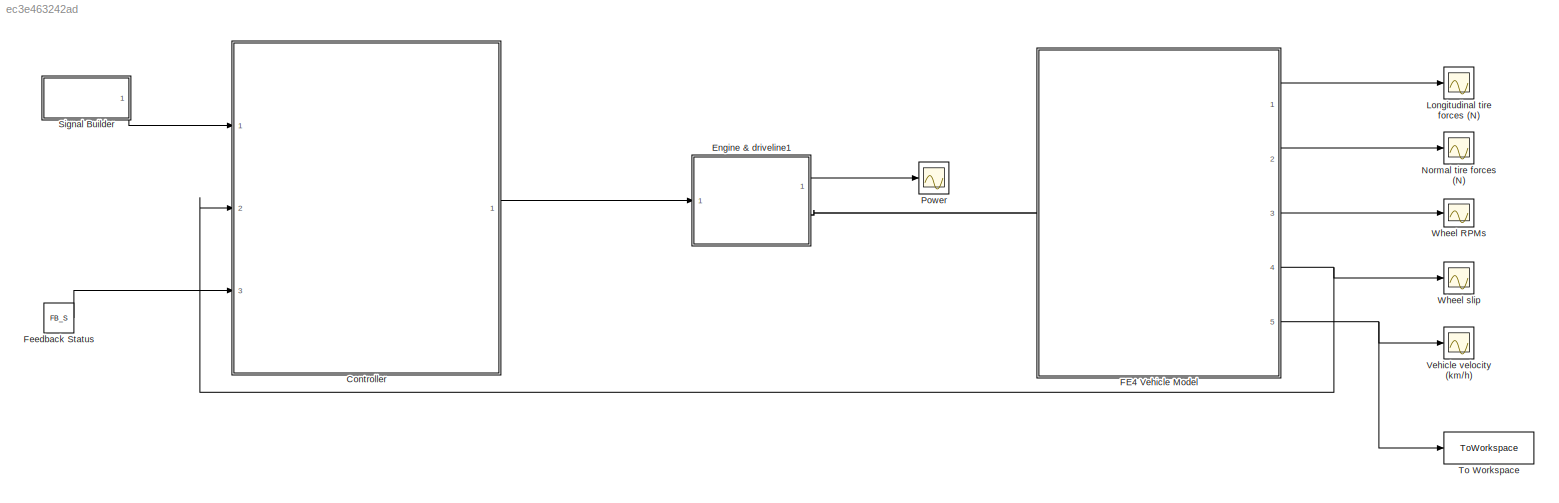
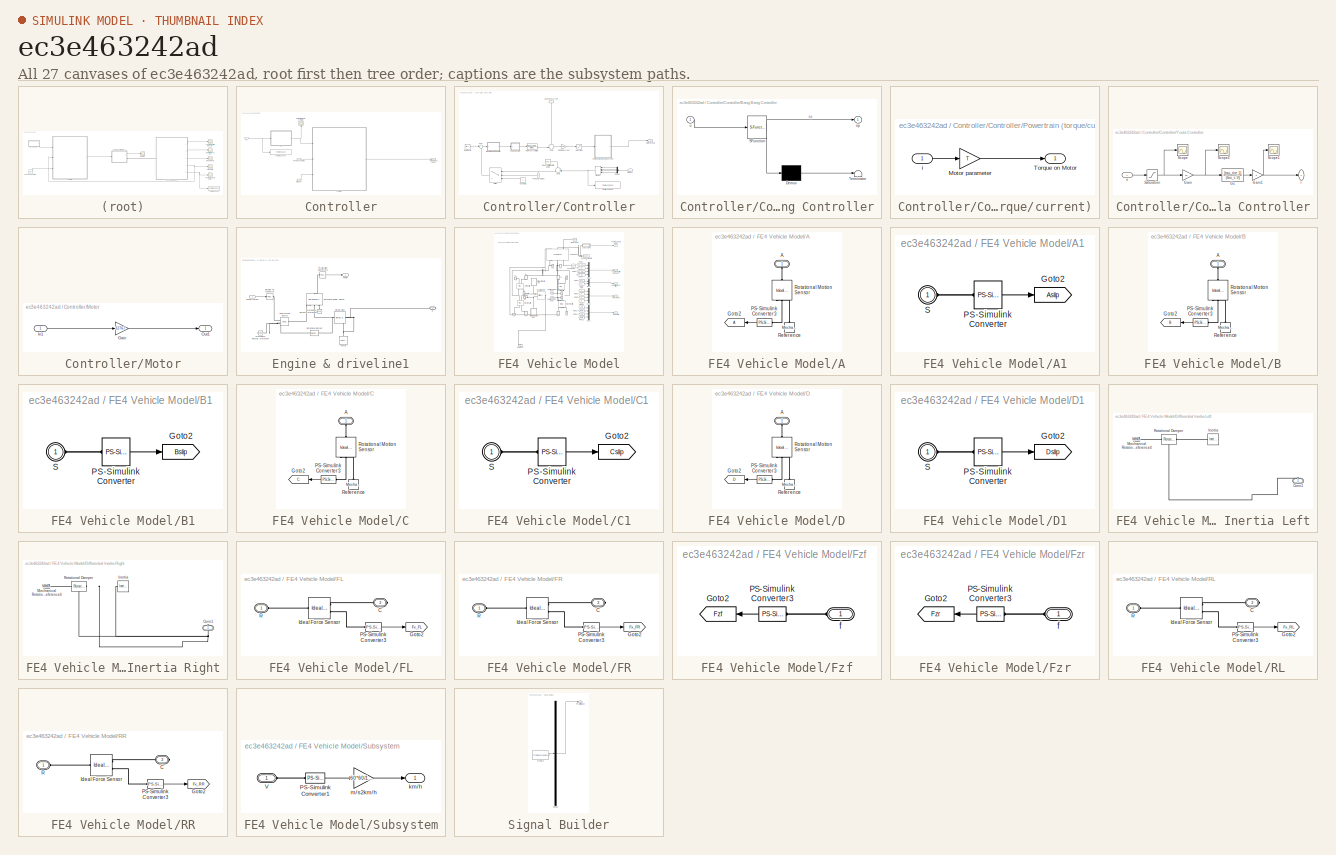
[diagram: thumbnail index - all 27 canvases of the model, root first then tree order]
MODEL slx_ec3e463242ad
KIND model
CONFIG AbsTol = auto
CONFIG EnableMultiTasking = on
CONFIG FixedStep = auto
CONFIG MaxStep = auto
CONFIG MinStep = auto
CONFIG PreLoadFcn = load CarSim_FE4.mat\nload Vehicle_information_test_0118_2017.mat\n\ninertiaDriveShaft = 12;\nratioDiff = 2;\nradiusWheel = 16*2.54/100;\nmassVehicle = 1500;\ninertiaLateral = 25*(radiusWheel)^2;\nbeta = 15;\nengineRPM0 = 800;\ntireStiffness = 200000;\ntireDamping = 1000;
CONFIG RelTol = 1e-3
CONFIG SampleTimeConstraint = Unconstrained
CONFIG Solver = VariableStepAuto
CONFIG SolverName = VariableStepAuto
CONFIG StartTime = 0.0
CONFIG StopTime = 10
BLOCK [SubSystem] Controller
  Ports = [3, 1]
  RequestExecContextInheritance = off
  Variant = off
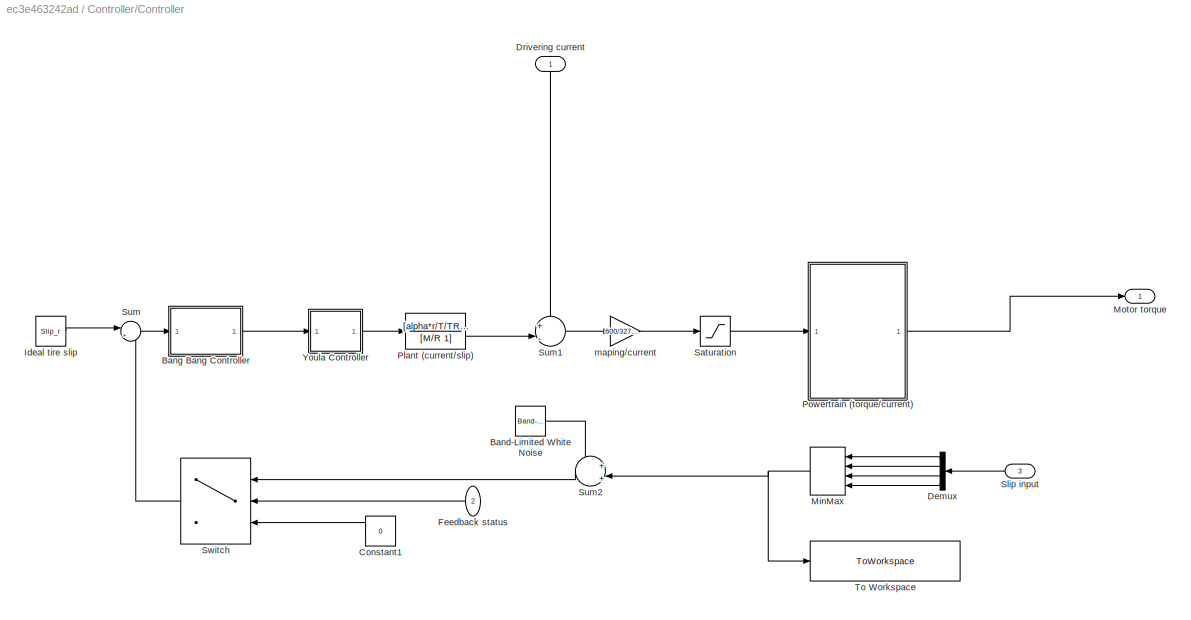
BLOCK [SubSystem] Controller/Controller
  Ports = [3, 1]
  RequestExecContextInheritance = off
  ShowPortLabels = none
  Variant = off
BLOCK [Reference] Controller/Controller/Band-Limited White Noise  REF=simulink/Sources/Band-Limited
White Noise
  Ports = [0, 1]
  SourceBlock = simulink/Sources/Band-Limited\nWhite Noise
  SourceProductBaseCode = SL
  SourceProductName = Simulink
  SourceType = Band-Limited White Noise.
BLOCK [SubSystem] Controller/Controller/Bang Bang Controller
  ErrorFcn = Stateflow.Translate.translate
  PermitHierarchicalResolution = ExplicitOnly
  Ports = [1, 1]
  RequestExecContextInheritance = off
  SFBlockType = MATLAB Function
  TreatAsAtomicUnit = on
  Variant = off
BLOCK [Demux] Controller/Controller/Bang Bang Controller/ Demux 
  Outputs = 1
  Ports = [1, 1]
BLOCK [S-Function] Controller/Controller/Bang Bang Controller/ SFunction 
  EnableBusSupport = on
  FunctionName = sf_sfun
  PortCounts = [1 2]
  Ports = [1, 2]
  SFcnIsStateOwnerBlock = off
  SFunctionDeploymentMode = off
  Tag = Stateflow S-Function Traction_Control_Testing_5_2_2017 2
BLOCK [Terminator] Controller/Controller/Bang Bang Controller/ Terminator 
BLOCK [Outport] Controller/Controller/Bang Bang Controller/sp
  IconDisplay = Port number
BLOCK [Inport] Controller/Controller/Bang Bang Controller/u
  IconDisplay = Port number
BLOCK [Constant] Controller/Controller/Constant1
  Value = 0
BLOCK [Demux] Controller/Controller/Demux
  DisplayOption = bar
  Ports = [1, 4]
BLOCK [Inport] Controller/Controller/Drivering current
  IconDisplay = Port number
BLOCK [Inport] Controller/Controller/Feedback status
  IconDisplay = Port number
  Port = 2
BLOCK [Constant] Controller/Controller/Ideal tire slip
  Value = Slip_r
BLOCK [MinMax] Controller/Controller/MinMax
  Function = max
  InputSameDT = off
  Inputs = 4
  Ports = [4, 1]
  SaturateOnIntegerOverflow = off
BLOCK [Outport] Controller/Controller/Motor torque
  IconDisplay = Port number
BLOCK [TransferFcn] Controller/Controller/Plant (current//slip)
  Denominator = [M/R 1]
  Numerator = [alpha*r/T/TR*32767/600]
BLOCK [SubSystem] Controller/Controller/Powertrain (torque//current)
  Ports = [1, 1]
  RequestExecContextInheritance = off
  Variant = off
BLOCK [Gain] Controller/Controller/Powertrain (torque//current)/Motor parameter
  Gain = T
  OutDataTypeStr = Inherit: Inherit via internal rule
  ParamDataTypeStr = Inherit: Inherit via internal rule
  SaturateOnIntegerOverflow = off
BLOCK [Outport] Controller/Controller/Powertrain (torque//current)/Torque on Motor
  IconDisplay = Port number
BLOCK [Inport] Controller/Controller/Powertrain (torque//current)/i
  IconDisplay = Port number
BLOCK [Saturate] Controller/Controller/Saturation
  InputPortMap = u0
  LowerLimit = 0
  Ports = [1, 1]
  UpperLimit = 600
BLOCK [Inport] Controller/Controller/Slip input
  IconDisplay = Port number
  Port = 3
BLOCK [Sum] Controller/Controller/Sum
  IconShape = round
  InputSameDT = off
  Inputs = |+-
  OutDataTypeStr = Inherit: Inherit via internal rule
  Ports = [2, 1]
  SaturateOnIntegerOverflow = off
BLOCK [Sum] Controller/Controller/Sum1
  IconShape = round
  InputSameDT = off
  Inputs = +|-||
  OutDataTypeStr = Inherit: Inherit via internal rule
  Ports = [2, 1]
  SaturateOnIntegerOverflow = off
BLOCK [Sum] Controller/Controller/Sum2
  IconShape = round
  InputSameDT = off
  Inputs = +|+||
  OutDataTypeStr = Inherit: Inherit via internal rule
  Ports = [2, 1]
  SaturateOnIntegerOverflow = off
BLOCK [Switch] Controller/Controller/Switch
  Criteria = u2 > Threshold
  InputSameDT = off
  SaturateOnIntegerOverflow = off
BLOCK [ToWorkspace] Controller/Controller/To Workspace
  FixptAsFi = on
  MaxDataPoints = inf
  Ports = [1]
  SampleTime = -1
  Save2DSignal = 3-D array (concatenate along third dimension)
  SaveFormat = Timeseries
  VariableName = real_time_slip
BLOCK [SubSystem] Controller/Controller/Youla Controller
  Ports = [1, 1]
  RequestExecContextInheritance = off
  Variant = off
BLOCK [Gain] Controller/Controller/Youla Controller/Gain
  Gain = kc
  OutDataTypeStr = Inherit: Inherit via internal rule
  ParamDataTypeStr = Inherit: Inherit via internal rule
  SaturateOnIntegerOverflow = off
BLOCK [Gain] Controller/Controller/Youla Controller/Gain1
  Gain = -1
  OutDataTypeStr = Inherit: Inherit via internal rule
  ParamDataTypeStr = Inherit: Inherit via internal rule
  SaturateOnIntegerOverflow = off
BLOCK [TransferFcn] Controller/Controller/Youla Controller/Gc
  Denominator = [tau_c 0]
  Numerator = [tau_tire 1]
BLOCK [Saturate] Controller/Controller/Youla Controller/Saturation
  InputPortMap = u0
  LowerLimit = -1
  Ports = [1, 1]
  UpperLimit = 0
BLOCK [Scope] Controller/Controller/Youla Controller/Scope
  NumInputPorts = 1
  Ports = [1]
  ScopeSpecificationString = Simulink.scopes.TimeScopeBlockCfg('CurrentConfiguration', extmgr.ConfigurationSet(extmgr.Configuration('Core','General UI',true),extmgr.Configuration('Core','Source UI',true),extmgr.Configuration('Sources','WiredSimulink',true,'DataLoggingVariableName','ScopeData1'),extmgr.Configuration('Visuals','Time Domain',true,'SerializedDisplays',{struct('MinYLimReal','-0.12332','MaxYLimReal','0.0137','YLabe...<+1422ch>
BLOCK [Scope] Controller/Controller/Youla Controller/Scope1
  NumInputPorts = 1
  Ports = [1]
  ScopeSpecificationString = Simulink.scopes.TimeScopeBlockCfg('CurrentConfiguration', extmgr.ConfigurationSet(extmgr.Configuration('Core','General UI',true),extmgr.Configuration('Core','Source UI',true),extmgr.Configuration('Sources','WiredSimulink',true,'DataLoggingVariableName','ScopeData2'),extmgr.Configuration('Visuals','Time Domain',true,'SerializedDisplays',{struct('MinYLimReal','-0.0744','MaxYLimReal','0.66956','YLabe...<+1417ch>
BLOCK [Scope] Controller/Controller/Youla Controller/Scope2
  NumInputPorts = 1
  Ports = [1]
  ScopeSpecificationString = Simulink.scopes.TimeScopeBlockCfg('CurrentConfiguration', extmgr.ConfigurationSet(extmgr.Configuration('Core','General UI',true),extmgr.Configuration('Core','Source UI',true),extmgr.Configuration('Sources','WiredSimulink',true,'DataLoggingVariableName','ScopeData3'),extmgr.Configuration('Visuals','Time Domain',true,'SerializedDisplays',{struct('MinYLimReal','-31.81745','MaxYLimReal','3.53527','YLa...<+1422ch>
BLOCK [Inport] Controller/Controller/Youla Controller/e
  IconDisplay = Port number
BLOCK [Outport] Controller/Controller/Youla Controller/r
  IconDisplay = Port number
BLOCK [Gain] Controller/Controller/maping//current
  Gain = 600/32767
  OutDataTypeStr = Inherit: Inherit via internal rule
  ParamDataTypeStr = Inherit: Inherit via internal rule
  SaturateOnIntegerOverflow = off
BLOCK [Scope] Controller/Current from Motor controller
  NumInputPorts = 1
  Ports = [1]
  ScopeSpecificationString = Simulink.scopes.TimeScopeBlockCfg('CurrentConfiguration', extmgr.ConfigurationSet(extmgr.Configuration('Core','General UI',true),extmgr.Configuration('Core','Source UI',true),extmgr.Configuration('Sources','WiredSimulink',true,'DataLoggingVariableName','ScopeData6'),extmgr.Configuration('Visuals','Time Domain',true,'SerializedDisplays',{struct('MinYLimReal','-75.00000','MaxYLimReal','675.00000','Y...<+1429ch>
BLOCK [Inport] Controller/Feedback status
  IconDisplay = Port number
  Port = 3
BLOCK [Inport] Controller/In1
  IconDisplay = Port number
BLOCK [SubSystem] Controller/Motor
  Ports = [1, 1]
  RequestExecContextInheritance = off
  ShowPortLabels = none
  Variant = off
BLOCK [Outport] Controller/Motor Torque output
  IconDisplay = Port number
BLOCK [Gain] Controller/Motor/Gain
  Gain = 32767
  OutDataTypeStr = Inherit: Inherit via internal rule
  ParamDataTypeStr = Inherit: Inherit via internal rule
  SaturateOnIntegerOverflow = off
BLOCK [Inport] Controller/Motor/In1
  IconDisplay = Port number
BLOCK [Outport] Controller/Motor/Out1
  IconDisplay = Port number
BLOCK [Inport] Controller/Slip input
  IconDisplay = Port number
  Port = 2
BLOCK [ToWorkspace] Controller/To Workspace1
  FixptAsFi = on
  MaxDataPoints = inf
  Ports = [1]
  SampleTime = -1
  Save2DSignal = 3-D array (concatenate along third dimension)
  SaveFormat = Timeseries
  VariableName = throttle_input
BLOCK [SubSystem] Engine & driveline1
  Ports = [1, 1, 0, 0, 0, 0, 1]
  RequestExecContextInheritance = off
  Variant = off
BLOCK [PMIOPort] Engine & driveline1/D
  Port = 1
  Side = Right
BLOCK [Inport] Engine & driveline1/Driving Torque
  IconDisplay = Port number
BLOCK [Reference] Engine & driveline1/Ideal Torque Source  REF=fl_lib/Mechanical/Mechanical Sources/Ideal Torque Source
  Ports = [0, 0, 0, 0, 0, 1, 2]
  SourceBlock = fl_lib/Mechanical/Mechanical Sources/Ideal Torque Source
  SourceProductBaseCode = SS
  SourceProductName = Simscape
  SourceType = Ideal Torque Source
BLOCK [Reference] Engine & driveline1/Inertia  REF=fl_lib/Mechanical/Rotational Elements/Inertia
  Ports = [0, 0, 0, 0, 0, 1]
  SourceBlock = fl_lib/Mechanical/Rotational Elements/Inertia
  SourceProductBaseCode = SS
  SourceProductName = Simscape
  SourceType = Inertia
BLOCK [Reference] Engine & driveline1/Mechanical Rotational Reference3  REF=fl_lib/Mechanical/Rotational Elements/Mechanical
Rotational Reference
  Ports = [0, 0, 0, 0, 0, 1]
  SourceBlock = fl_lib/Mechanical/Rotational Elements/Mechanical\nRotational Reference
  SourceProductBaseCode = SS
  SourceProductName = Simscape
  SourceType = Mechanical\nRotational Reference
BLOCK [Reference] Engine & driveline1/Mechanical Rotational Reference4  REF=fl_lib/Mechanical/Rotational Elements/Mechanical
Rotational Reference
  Ports = [0, 0, 0, 0, 0, 1]
  SourceBlock = fl_lib/Mechanical/Rotational Elements/Mechanical\nRotational Reference
  SourceProductBaseCode = SS
  SourceProductName = Simscape
  SourceType = Mechanical\nRotational Reference
BLOCK [Reference] Engine & driveline1/PS-Simulink Converter5  REF=nesl_utility/PS-Simulink
Converter
  Ports = [0, 1, 0, 0, 0, 1]
  SourceBlock = nesl_utility/PS-Simulink\nConverter
  SourceProductBaseCode = SS
  SourceProductName = Simscape
  SourceType = PS-Simulink\nConverter
BLOCK [Outport] Engine & driveline1/Power
  IconDisplay = Port number
BLOCK [Reference] Engine & driveline1/Rotational Damper  REF=fl_lib/Mechanical/Rotational Elements/Rotational Damper
  Ports = [0, 0, 0, 0, 0, 1, 1]
  SourceBlock = fl_lib/Mechanical/Rotational Elements/Rotational Damper
  SourceProductBaseCode = SS
  SourceProductName = Simscape
  SourceType = Rotational Damper
BLOCK [Reference] Engine & driveline1/Rotational Power Sensor  REF=sdl_lib/Sensors/Rotational Power
Sensor
  Ports = [0, 0, 0, 0, 0, 3, 1]
  SourceBlock = sdl_lib/Sensors/Rotational Power\nSensor
  SourceProductBaseCode = LD
  SourceProductName = Simscape Driveline
  SourceType = Rotational Power\nSensor
BLOCK [Reference] Engine & driveline1/Simple Gear  REF=sdl_lib/Gears/Simple Gear
  Ports = [0, 0, 0, 0, 0, 1, 1]
  SourceBlock = sdl_lib/Gears/Simple Gear
  SourceProductBaseCode = LD
  SourceProductName = Simscape Driveline
  SourceType = Simple Gear
BLOCK [Reference] Engine & driveline1/Simulink-PS Converter  REF=nesl_utility/Simulink-PS
Converter
  Ports = [1, 0, 0, 0, 0, 0, 1]
  SourceBlock = nesl_utility/Simulink-PS\nConverter
  SourceProductBaseCode = SS
  SourceProductName = Simscape
  SourceType = Simulink-PS\nConverter
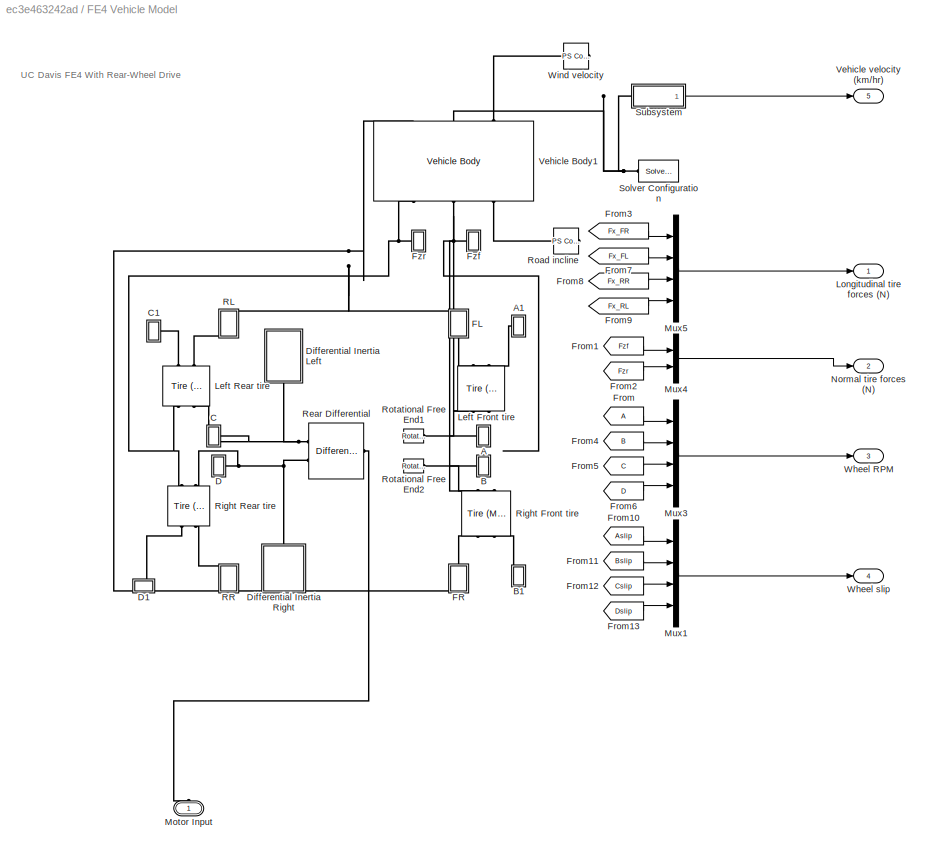
BLOCK [SubSystem] FE4 Vehicle Model
  Ports = [0, 5, 0, 0, 0, 1]
  RequestExecContextInheritance = off
  Variant = off
BLOCK [SubSystem] FE4 Vehicle Model/A
  Ports = [0, 0, 0, 0, 0, 1]
  RequestExecContextInheritance = off
  Variant = off
BLOCK [PMIOPort] FE4 Vehicle Model/A/A
  Port = 1
  Side = Left
BLOCK [Goto] FE4 Vehicle Model/A/Goto2
  TagVisibility = global
BLOCK [Reference] FE4 Vehicle Model/A/PS-Simulink Converter3  REF=nesl_utility/PS-Simulink
Converter
  Ports = [0, 1, 0, 0, 0, 1]
  SourceBlock = nesl_utility/PS-Simulink\nConverter
  SourceProductBaseCode = SS
  SourceProductName = Simscape
  SourceType = PS-Simulink\nConverter
BLOCK [Reference] FE4 Vehicle Model/A/Reference  REF=fl_lib/Mechanical/Rotational Elements/Mechanical
Rotational Reference
  Ports = [0, 0, 0, 0, 0, 1]
  SourceBlock = fl_lib/Mechanical/Rotational Elements/Mechanical\nRotational Reference
  SourceProductBaseCode = SS
  SourceProductName = Simscape
  SourceType = Mechanical\nRotational Reference
BLOCK [Reference] FE4 Vehicle Model/A/Rotational Motion Sensor  REF=fl_lib/Mechanical/Mechanical Sensors/Ideal Rotational
Motion Sensor
  Ports = [0, 0, 0, 0, 0, 1, 3]
  SourceBlock = fl_lib/Mechanical/Mechanical Sensors/Ideal Rotational\nMotion Sensor
  SourceProductBaseCode = SS
  SourceProductName = Simscape
  SourceType = Ideal Rotational\nMotion Sensor
BLOCK [SubSystem] FE4 Vehicle Model/A1
  Ports = [0, 0, 0, 0, 0, 1]
  RequestExecContextInheritance = off
  Variant = off
BLOCK [Goto] FE4 Vehicle Model/A1/Goto2
  GotoTag = Aslip
  TagVisibility = global
BLOCK [Reference] FE4 Vehicle Model/A1/PS-Simulink Converter  REF=nesl_utility/PS-Simulink
Converter
  Ports = [0, 1, 0, 0, 0, 1]
  SourceBlock = nesl_utility/PS-Simulink\nConverter
  SourceProductBaseCode = SS
  SourceProductName = Simscape
  SourceType = PS-Simulink\nConverter
BLOCK [PMIOPort] FE4 Vehicle Model/A1/S
  Port = 1
  Side = Left
BLOCK [SubSystem] FE4 Vehicle Model/B
  Ports = [0, 0, 0, 0, 0, 1]
  RequestExecContextInheritance = off
  Variant = off
BLOCK [PMIOPort] FE4 Vehicle Model/B/A
  Port = 1
  Side = Left
BLOCK [Goto] FE4 Vehicle Model/B/Goto2
  GotoTag = B
  TagVisibility = global
BLOCK [Reference] FE4 Vehicle Model/B/PS-Simulink Converter3  REF=nesl_utility/PS-Simulink
Converter
  Ports = [0, 1, 0, 0, 0, 1]
  SourceBlock = nesl_utility/PS-Simulink\nConverter
  SourceProductBaseCode = SS
  SourceProductName = Simscape
  SourceType = PS-Simulink\nConverter
BLOCK [Reference] FE4 Vehicle Model/B/Reference  REF=fl_lib/Mechanical/Rotational Elements/Mechanical
Rotational Reference
  Ports = [0, 0, 0, 0, 0, 1]
  SourceBlock = fl_lib/Mechanical/Rotational Elements/Mechanical\nRotational Reference
  SourceProductBaseCode = SS
  SourceProductName = Simscape
  SourceType = Mechanical\nRotational Reference
BLOCK [Reference] FE4 Vehicle Model/B/Rotational Motion Sensor  REF=fl_lib/Mechanical/Mechanical Sensors/Ideal Rotational
Motion Sensor
  Ports = [0, 0, 0, 0, 0, 1, 3]
  SourceBlock = fl_lib/Mechanical/Mechanical Sensors/Ideal Rotational\nMotion Sensor
  SourceProductBaseCode = SS
  SourceProductName = Simscape
  SourceType = Ideal Rotational\nMotion Sensor
BLOCK [SubSystem] FE4 Vehicle Model/B1
  Ports = [0, 0, 0, 0, 0, 1]
  RequestExecContextInheritance = off
  Variant = off
BLOCK [Goto] FE4 Vehicle Model/B1/Goto2
  GotoTag = Bslip
  TagVisibility = global
BLOCK [Reference] FE4 Vehicle Model/B1/PS-Simulink Converter  REF=nesl_utility/PS-Simulink
Converter
  Ports = [0, 1, 0, 0, 0, 1]
  SourceBlock = nesl_utility/PS-Simulink\nConverter
  SourceProductBaseCode = SS
  SourceProductName = Simscape
  SourceType = PS-Simulink\nConverter
BLOCK [PMIOPort] FE4 Vehicle Model/B1/S
  Port = 1
  Side = Left
BLOCK [SubSystem] FE4 Vehicle Model/C
  Ports = [0, 0, 0, 0, 0, 1]
  RequestExecContextInheritance = off
  Variant = off
BLOCK [PMIOPort] FE4 Vehicle Model/C/A
  Port = 1
  Side = Left
BLOCK [Goto] FE4 Vehicle Model/C/Goto2
  GotoTag = C
  TagVisibility = global
BLOCK [Reference] FE4 Vehicle Model/C/PS-Simulink Converter3  REF=nesl_utility/PS-Simulink
Converter
  Ports = [0, 1, 0, 0, 0, 1]
  SourceBlock = nesl_utility/PS-Simulink\nConverter
  SourceProductBaseCode = SS
  SourceProductName = Simscape
  SourceType = PS-Simulink\nConverter
BLOCK [Reference] FE4 Vehicle Model/C/Reference  REF=fl_lib/Mechanical/Rotational Elements/Mechanical
Rotational Reference
  Ports = [0, 0, 0, 0, 0, 1]
  SourceBlock = fl_lib/Mechanical/Rotational Elements/Mechanical\nRotational Reference
  SourceProductBaseCode = SS
  SourceProductName = Simscape
  SourceType = Mechanical\nRotational Reference
BLOCK [Reference] FE4 Vehicle Model/C/Rotational Motion Sensor  REF=fl_lib/Mechanical/Mechanical Sensors/Ideal Rotational
Motion Sensor
  Ports = [0, 0, 0, 0, 0, 1, 3]
  SourceBlock = fl_lib/Mechanical/Mechanical Sensors/Ideal Rotational\nMotion Sensor
  SourceProductBaseCode = SS
  SourceProductName = Simscape
  SourceType = Ideal Rotational\nMotion Sensor
BLOCK [SubSystem] FE4 Vehicle Model/C1
  Ports = [0, 0, 0, 0, 0, 1]
  RequestExecContextInheritance = off
  Variant = off
BLOCK [Goto] FE4 Vehicle Model/C1/Goto2
  GotoTag = Cslip
  TagVisibility = global
BLOCK [Reference] FE4 Vehicle Model/C1/PS-Simulink Converter  REF=nesl_utility/PS-Simulink
Converter
  Ports = [0, 1, 0, 0, 0, 1]
  SourceBlock = nesl_utility/PS-Simulink\nConverter
  SourceProductBaseCode = SS
  SourceProductName = Simscape
  SourceType = PS-Simulink\nConverter
BLOCK [PMIOPort] FE4 Vehicle Model/C1/S
  Port = 1
  Side = Left
BLOCK [SubSystem] FE4 Vehicle Model/D
  Ports = [0, 0, 0, 0, 0, 1]
  RequestExecContextInheritance = off
  Variant = off
BLOCK [PMIOPort] FE4 Vehicle Model/D/A
  Port = 1
  Side = Left
BLOCK [Goto] FE4 Vehicle Model/D/Goto2
  GotoTag = D
  TagVisibility = global
BLOCK [Reference] FE4 Vehicle Model/D/PS-Simulink Converter3  REF=nesl_utility/PS-Simulink
Converter
  Ports = [0, 1, 0, 0, 0, 1]
  SourceBlock = nesl_utility/PS-Simulink\nConverter
  SourceProductBaseCode = SS
  SourceProductName = Simscape
  SourceType = PS-Simulink\nConverter
BLOCK [Reference] FE4 Vehicle Model/D/Reference  REF=fl_lib/Mechanical/Rotational Elements/Mechanical
Rotational Reference
  Ports = [0, 0, 0, 0, 0, 1]
  SourceBlock = fl_lib/Mechanical/Rotational Elements/Mechanical\nRotational Reference
  SourceProductBaseCode = SS
  SourceProductName = Simscape
  SourceType = Mechanical\nRotational Reference
BLOCK [Reference] FE4 Vehicle Model/D/Rotational Motion Sensor  REF=fl_lib/Mechanical/Mechanical Sensors/Ideal Rotational
Motion Sensor
  Ports = [0, 0, 0, 0, 0, 1, 3]
  SourceBlock = fl_lib/Mechanical/Mechanical Sensors/Ideal Rotational\nMotion Sensor
  SourceProductBaseCode = SS
  SourceProductName = Simscape
  SourceType = Ideal Rotational\nMotion Sensor
BLOCK [SubSystem] FE4 Vehicle Model/D1
  Ports = [0, 0, 0, 0, 0, 1]
  RequestExecContextInheritance = off
  Variant = off
BLOCK [Goto] FE4 Vehicle Model/D1/Goto2
  GotoTag = Dslip
  TagVisibility = global
BLOCK [Reference] FE4 Vehicle Model/D1/PS-Simulink Converter  REF=nesl_utility/PS-Simulink
Converter
  Ports = [0, 1, 0, 0, 0, 1]
  SourceBlock = nesl_utility/PS-Simulink\nConverter
  SourceProductBaseCode = SS
  SourceProductName = Simscape
  SourceType = PS-Simulink\nConverter
BLOCK [PMIOPort] FE4 Vehicle Model/D1/S
  Port = 1
  Side = Left
BLOCK [SubSystem] FE4 Vehicle Model/Differential Inertia Left
  Ports = [0, 0, 0, 0, 0, 0, 1]
  RequestExecContextInheritance = off
  Variant = off
BLOCK [PMIOPort] FE4 Vehicle Model/Differential Inertia Left/Conn1
  Port = 1
  Side = Right
BLOCK [Reference] FE4 Vehicle Model/Differential Inertia Left/Inertia  REF=fl_lib/Mechanical/Rotational Elements/Inertia
  Ports = [0, 0, 0, 0, 0, 1]
  SourceBlock = fl_lib/Mechanical/Rotational Elements/Inertia
  SourceProductBaseCode = SS
  SourceProductName = Simscape
  SourceType = Inertia
BLOCK [Reference] FE4 Vehicle Model/Differential Inertia Left/Mechanical Rotational Reference4  REF=fl_lib/Mechanical/Rotational Elements/Mechanical
Rotational Reference
  Ports = [0, 0, 0, 0, 0, 1]
  SourceBlock = fl_lib/Mechanical/Rotational Elements/Mechanical\nRotational Reference
  SourceProductBaseCode = SS
  SourceProductName = Simscape
  SourceType = Mechanical\nRotational Reference
BLOCK [Reference] FE4 Vehicle Model/Differential Inertia Left/Rotational Damper  REF=fl_lib/Mechanical/Rotational Elements/Rotational Damper
  Ports = [0, 0, 0, 0, 0, 1, 1]
  SourceBlock = fl_lib/Mechanical/Rotational Elements/Rotational Damper
  SourceProductBaseCode = SS
  SourceProductName = Simscape
  SourceType = Rotational Damper
BLOCK [SubSystem] FE4 Vehicle Model/Differential Inertia Right
  Ports = [0, 0, 0, 0, 0, 0, 1]
  RequestExecContextInheritance = off
  Variant = off
BLOCK [PMIOPort] FE4 Vehicle Model/Differential Inertia Right/Conn1
  Port = 1
  Side = Right
BLOCK [Reference] FE4 Vehicle Model/Differential Inertia Right/Inertia  REF=fl_lib/Mechanical/Rotational Elements/Inertia
  Ports = [0, 0, 0, 0, 0, 1]
  SourceBlock = fl_lib/Mechanical/Rotational Elements/Inertia
  SourceProductBaseCode = SS
  SourceProductName = Simscape
  SourceType = Inertia
BLOCK [Reference] FE4 Vehicle Model/Differential Inertia Right/Mechanical Rotational Reference4  REF=fl_lib/Mechanical/Rotational Elements/Mechanical
Rotational Reference
  Ports = [0, 0, 0, 0, 0, 1]
  SourceBlock = fl_lib/Mechanical/Rotational Elements/Mechanical\nRotational Reference
  SourceProductBaseCode = SS
  SourceProductName = Simscape
  SourceType = Mechanical\nRotational Reference
BLOCK [Reference] FE4 Vehicle Model/Differential Inertia Right/Rotational Damper  REF=fl_lib/Mechanical/Rotational Elements/Rotational Damper
  Ports = [0, 0, 0, 0, 0, 1, 1]
  SourceBlock = fl_lib/Mechanical/Rotational Elements/Rotational Damper
  SourceProductBaseCode = SS
  SourceProductName = Simscape
  SourceType = Rotational Damper
BLOCK [SubSystem] FE4 Vehicle Model/FL
  Ports = [0, 0, 0, 0, 0, 1, 1]
  RequestExecContextInheritance = off
  Variant = off
BLOCK [PMIOPort] FE4 Vehicle Model/FL/C
  Port = 2
  Side = Right
BLOCK [Goto] FE4 Vehicle Model/FL/Goto2
  GotoTag = Fx_FL
  TagVisibility = global
BLOCK [Reference] FE4 Vehicle Model/FL/Ideal Force Sensor  REF=fl_lib/Mechanical/Mechanical Sensors/Ideal Force Sensor
  Ports = [0, 0, 0, 0, 0, 1, 2]
  SourceBlock = fl_lib/Mechanical/Mechanical Sensors/Ideal Force Sensor
  SourceProductBaseCode = SS
  SourceProductName = Simscape
  SourceType = Ideal Force Sensor
BLOCK [Reference] FE4 Vehicle Model/FL/PS-Simulink Converter3  REF=nesl_utility/PS-Simulink
Converter
  Ports = [0, 1, 0, 0, 0, 1]
  SourceBlock = nesl_utility/PS-Simulink\nConverter
  SourceProductBaseCode = SS
  SourceProductName = Simscape
  SourceType = PS-Simulink\nConverter
BLOCK [PMIOPort] FE4 Vehicle Model/FL/R
  Port = 1
  Side = Left
BLOCK [SubSystem] FE4 Vehicle Model/FR
  Ports = [0, 0, 0, 0, 0, 1, 1]
  RequestExecContextInheritance = off
  Variant = off
BLOCK [PMIOPort] FE4 Vehicle Model/FR/C
  Port = 2
  Side = Right
BLOCK [Goto] FE4 Vehicle Model/FR/Goto2
  GotoTag = Fx_FR
  TagVisibility = global
BLOCK [Reference] FE4 Vehicle Model/FR/Ideal Force Sensor  REF=fl_lib/Mechanical/Mechanical Sensors/Ideal Force Sensor
  Ports = [0, 0, 0, 0, 0, 1, 2]
  SourceBlock = fl_lib/Mechanical/Mechanical Sensors/Ideal Force Sensor
  SourceProductBaseCode = SS
  SourceProductName = Simscape
  SourceType = Ideal Force Sensor
BLOCK [Reference] FE4 Vehicle Model/FR/PS-Simulink Converter3  REF=nesl_utility/PS-Simulink
Converter
  Ports = [0, 1, 0, 0, 0, 1]
  SourceBlock = nesl_utility/PS-Simulink\nConverter
  SourceProductBaseCode = SS
  SourceProductName = Simscape
  SourceType = PS-Simulink\nConverter
BLOCK [PMIOPort] FE4 Vehicle Model/FR/R
  Port = 1
  Side = Left
BLOCK [From] FE4 Vehicle Model/From
  CloseFcn = tagdialog Close
  TagVisibility = global
BLOCK [From] FE4 Vehicle Model/From1
  CloseFcn = tagdialog Close
  GotoTag = Fzf
  TagVisibility = global
BLOCK [From] FE4 Vehicle Model/From10
  CloseFcn = tagdialog Close
  GotoTag = Aslip
  TagVisibility = global
BLOCK [From] FE4 Vehicle Model/From11
  CloseFcn = tagdialog Close
  GotoTag = Bslip
  TagVisibility = global
BLOCK [From] FE4 Vehicle Model/From12
  CloseFcn = tagdialog Close
  GotoTag = Cslip
  TagVisibility = global
BLOCK [From] FE4 Vehicle Model/From13
  CloseFcn = tagdialog Close
  GotoTag = Dslip
  TagVisibility = global
BLOCK [From] FE4 Vehicle Model/From2
  CloseFcn = tagdialog Close
  GotoTag = Fzr
  TagVisibility = global
BLOCK [From] FE4 Vehicle Model/From3
  CloseFcn = tagdialog Close
  GotoTag = Fx_FR
  TagVisibility = global
BLOCK [From] FE4 Vehicle Model/From4
  CloseFcn = tagdialog Close
  GotoTag = B
  TagVisibility = global
BLOCK [From] FE4 Vehicle Model/From5
  CloseFcn = tagdialog Close
  GotoTag = C
  TagVisibility = global
BLOCK [From] FE4 Vehicle Model/From6
  CloseFcn = tagdialog Close
  GotoTag = D
  TagVisibility = global
BLOCK [From] FE4 Vehicle Model/From7
  CloseFcn = tagdialog Close
  GotoTag = Fx_FL
  TagVisibility = global
BLOCK [From] FE4 Vehicle Model/From8
  CloseFcn = tagdialog Close
  GotoTag = Fx_RR
  TagVisibility = global
BLOCK [From] FE4 Vehicle Model/From9
  CloseFcn = tagdialog Close
  GotoTag = Fx_RL
  TagVisibility = global
BLOCK [SubSystem] FE4 Vehicle Model/Fzf
  Ports = [0, 0, 0, 0, 0, 1]
  RequestExecContextInheritance = off
  Variant = off
BLOCK [Goto] FE4 Vehicle Model/Fzf/Goto2
  GotoTag = Fzf
  TagVisibility = global
BLOCK [Reference] FE4 Vehicle Model/Fzf/PS-Simulink Converter3  REF=nesl_utility/PS-Simulink
Converter
  Ports = [0, 1, 0, 0, 0, 1]
  SourceBlock = nesl_utility/PS-Simulink\nConverter
  SourceProductBaseCode = SS
  SourceProductName = Simscape
  SourceType = PS-Simulink\nConverter
BLOCK [PMIOPort] FE4 Vehicle Model/Fzf/f
  Port = 1
  Side = Left
BLOCK [SubSystem] FE4 Vehicle Model/Fzr
  Ports = [0, 0, 0, 0, 0, 1]
  RequestExecContextInheritance = off
  Variant = off
BLOCK [Goto] FE4 Vehicle Model/Fzr/Goto2
  GotoTag = Fzr
  TagVisibility = global
BLOCK [Reference] FE4 Vehicle Model/Fzr/PS-Simulink Converter3  REF=nesl_utility/PS-Simulink
Converter
  Ports = [0, 1, 0, 0, 0, 1]
  SourceBlock = nesl_utility/PS-Simulink\nConverter
  SourceProductBaseCode = SS
  SourceProductName = Simscape
  SourceType = PS-Simulink\nConverter
BLOCK [PMIOPort] FE4 Vehicle Model/Fzr/f
  Port = 1
  Side = Left
BLOCK [Reference] FE4 Vehicle Model/Left Front tire  REF=sdl_lib/Tires & Vehicles/Tire (Magic Formula)
  Ports = [0, 0, 0, 0, 0, 2, 2]
  SourceBlock = sdl_lib/Tires & Vehicles/Tire (Magic Formula)
  SourceProductBaseCode = LD
  SourceProductName = Simscape Driveline
  SourceType = Tire (Magic Formula)
BLOCK [Reference] FE4 Vehicle Model/Left Rear tire  REF=sdl_lib/Tires & Vehicles/Tire (Magic Formula)
  Ports = [0, 0, 0, 0, 0, 2, 2]
  SourceBlock = sdl_lib/Tires & Vehicles/Tire (Magic Formula)
  SourceProductBaseCode = LD
  SourceProductName = Simscape Driveline
  SourceType = Tire (Magic Formula)
BLOCK [Outport] FE4 Vehicle Model/Longitudinal tire forces (N)
  IconDisplay = Port number
BLOCK [PMIOPort] FE4 Vehicle Model/Motor Input
  Port = 1
  Side = Left
BLOCK [Mux] FE4 Vehicle Model/Mux1
  DisplayOption = bar
  Ports = [4, 1]
BLOCK [Mux] FE4 Vehicle Model/Mux3
  DisplayOption = bar
  Ports = [4, 1]
BLOCK [Mux] FE4 Vehicle Model/Mux4
  DisplayOption = bar
  Inputs = 2
  Ports = [2, 1]
BLOCK [Mux] FE4 Vehicle Model/Mux5
  DisplayOption = bar
  Ports = [4, 1]
BLOCK [Outport] FE4 Vehicle Model/Normal tire forces (N)
  IconDisplay = Port number
  Port = 2
BLOCK [SubSystem] FE4 Vehicle Model/RL
  Ports = [0, 0, 0, 0, 0, 1, 1]
  RequestExecContextInheritance = off
  Variant = off
BLOCK [PMIOPort] FE4 Vehicle Model/RL/C
  Port = 2
  Side = Right
BLOCK [Goto] FE4 Vehicle Model/RL/Goto2
  GotoTag = Fx_RL
  TagVisibility = global
BLOCK [Reference] FE4 Vehicle Model/RL/Ideal Force Sensor  REF=fl_lib/Mechanical/Mechanical Sensors/Ideal Force Sensor
  Ports = [0, 0, 0, 0, 0, 1, 2]
  SourceBlock = fl_lib/Mechanical/Mechanical Sensors/Ideal Force Sensor
  SourceProductBaseCode = SS
  SourceProductName = Simscape
  SourceType = Ideal Force Sensor
BLOCK [Reference] FE4 Vehicle Model/RL/PS-Simulink Converter3  REF=nesl_utility/PS-Simulink
Converter
  Ports = [0, 1, 0, 0, 0, 1]
  SourceBlock = nesl_utility/PS-Simulink\nConverter
  SourceProductBaseCode = SS
  SourceProductName = Simscape
  SourceType = PS-Simulink\nConverter
BLOCK [PMIOPort] FE4 Vehicle Model/RL/R
  Port = 1
  Side = Left
BLOCK [SubSystem] FE4 Vehicle Model/RR
  Ports = [0, 0, 0, 0, 0, 1, 1]
  RequestExecContextInheritance = off
  Variant = off
BLOCK [PMIOPort] FE4 Vehicle Model/RR/C
  Port = 2
  Side = Right
BLOCK [Goto] FE4 Vehicle Model/RR/Goto2
  GotoTag = Fx_RR
  TagVisibility = global
BLOCK [Reference] FE4 Vehicle Model/RR/Ideal Force Sensor  REF=fl_lib/Mechanical/Mechanical Sensors/Ideal Force Sensor
  Ports = [0, 0, 0, 0, 0, 1, 2]
  SourceBlock = fl_lib/Mechanical/Mechanical Sensors/Ideal Force Sensor
  SourceProductBaseCode = SS
  SourceProductName = Simscape
  SourceType = Ideal Force Sensor
BLOCK [Reference] FE4 Vehicle Model/RR/PS-Simulink Converter3  REF=nesl_utility/PS-Simulink
Converter
  Ports = [0, 1, 0, 0, 0, 1]
  SourceBlock = nesl_utility/PS-Simulink\nConverter
  SourceProductBaseCode = SS
  SourceProductName = Simscape
  SourceType = PS-Simulink\nConverter
BLOCK [PMIOPort] FE4 Vehicle Model/RR/R
  Port = 1
  Side = Left
BLOCK [Reference] FE4 Vehicle Model/Rear Differential  REF=sdl_lib/Gears/Differential
  Ports = [0, 0, 0, 0, 0, 1, 2]
  SourceBlock = sdl_lib/Gears/Differential
  SourceProductBaseCode = LD
  SourceProductName = Simscape Driveline
  SourceType = Differential
BLOCK [Reference] FE4 Vehicle Model/Right Front tire  REF=sdl_lib/Tires & Vehicles/Tire (Magic Formula)
  Ports = [0, 0, 0, 0, 0, 2, 2]
  SourceBlock = sdl_lib/Tires & Vehicles/Tire (Magic Formula)
  SourceProductBaseCode = LD
  SourceProductName = Simscape Driveline
  SourceType = Tire (Magic Formula)
BLOCK [Reference] FE4 Vehicle Model/Right Rear tire  REF=sdl_lib/Tires & Vehicles/Tire (Magic Formula)
  Ports = [0, 0, 0, 0, 0, 2, 2]
  SourceBlock = sdl_lib/Tires & Vehicles/Tire (Magic Formula)
  SourceProductBaseCode = LD
  SourceProductName = Simscape Driveline
  SourceType = Tire (Magic Formula)
BLOCK [Reference] FE4 Vehicle Model/Road incline  REF=fl_lib/Physical Signals/Sources/PS Constant
  Ports = [0, 0, 0, 0, 0, 0, 1]
  SourceBlock = fl_lib/Physical Signals/Sources/PS Constant
  SourceProductBaseCode = SS
  SourceProductName = Simscape
  SourceType = PS Constant
BLOCK [Reference] FE4 Vehicle Model/Rotational Free End1  REF=fl_lib/Mechanical/Rotational Elements/Rotational Free End
  Ports = [0, 0, 0, 0, 0, 1]
  SourceBlock = fl_lib/Mechanical/Rotational Elements/Rotational Free End
  SourceProductBaseCode = SS
  SourceProductName = Simscape
  SourceType = Rotational Free End
BLOCK [Reference] FE4 Vehicle Model/Rotational Free End2  REF=fl_lib/Mechanical/Rotational Elements/Rotational Free End
  Ports = [0, 0, 0, 0, 0, 1]
  SourceBlock = fl_lib/Mechanical/Rotational Elements/Rotational Free End
  SourceProductBaseCode = SS
  SourceProductName = Simscape
  SourceType = Rotational Free End
BLOCK [Reference] FE4 Vehicle Model/Solver Configuration  REF=nesl_utility/Solver
Configuration
  Ports = [0, 0, 0, 0, 0, 0, 1]
  SourceBlock = nesl_utility/Solver\nConfiguration
  SourceProductBaseCode = SS
  SourceProductName = Simscape
  SourceType = Solver\nConfiguration
BLOCK [SubSystem] FE4 Vehicle Model/Subsystem
  Ports = [0, 1, 0, 0, 0, 1]
  RequestExecContextInheritance = off
  Variant = off
BLOCK [Reference] FE4 Vehicle Model/Subsystem/PS-Simulink Converter1  REF=nesl_utility/PS-Simulink
Converter
  Ports = [0, 1, 0, 0, 0, 1]
  SourceBlock = nesl_utility/PS-Simulink\nConverter
  SourceProductBaseCode = SS
  SourceProductName = Simscape
  SourceType = PS-Simulink\nConverter
BLOCK [PMIOPort] FE4 Vehicle Model/Subsystem/V
  Port = 1
  Side = Left
BLOCK [Outport] FE4 Vehicle Model/Subsystem/km//h
  IconDisplay = Port number
BLOCK [Gain] FE4 Vehicle Model/Subsystem/m//s2km//h
  Gain = 60*60/1000
  OutDataTypeStr = Inherit: Inherit via internal rule
  ParamDataTypeStr = Inherit: Inherit via internal rule
  SaturateOnIntegerOverflow = off
BLOCK [Reference] FE4 Vehicle Model/Vehicle Body1  REF=sdl_lib/Tires & Vehicles/Vehicle Body
  Ports = [0, 0, 0, 0, 0, 3, 3]
  SourceBlock = sdl_lib/Tires & Vehicles/Vehicle Body
  SourceProductBaseCode = LD
  SourceProductName = Simscape Driveline
  SourceType = Vehicle Body
BLOCK [Outport] FE4 Vehicle Model/Vehicle velocity (km//hr)
  IconDisplay = Port number
  Port = 5
BLOCK [Outport] FE4 Vehicle Model/Wheel RPM
  IconDisplay = Port number
  Port = 3
BLOCK [Outport] FE4 Vehicle Model/Wheel slip
  IconDisplay = Port number
  Port = 4
BLOCK [Reference] FE4 Vehicle Model/Wind velocity  REF=fl_lib/Physical Signals/Sources/PS Constant
  Ports = [0, 0, 0, 0, 0, 0, 1]
  SourceBlock = fl_lib/Physical Signals/Sources/PS Constant
  SourceProductBaseCode = SS
  SourceProductName = Simscape
  SourceType = PS Constant
BLOCK [Constant] Feedback Status
  Value = FB_S
BLOCK [Scope] Longitudinal tire forces (N)
  NumInputPorts = 1
  Ports = [1]
  ScopeSpecificationString = Simulink.scopes.TimeScopeBlockCfg('CurrentConfiguration', extmgr.ConfigurationSet(extmgr.Configuration('Core','General UI',true),extmgr.Configuration('Core','Source UI',true),extmgr.Configuration('Sources','WiredSimulink',true,'DataLoggingVariableName','ScopeData6','DataLoggingSaveFormat','StructureWithTime','DataLoggingLimitDataPoints',true,'DataLoggingDecimation','1','DataLoggingDecimateData',tr...<+1979ch>
BLOCK [Scope] Normal tire forces (N)
  NumInputPorts = 1
  Ports = [1]
  ScopeSpecificationString = Simulink.scopes.TimeScopeBlockCfg('CurrentConfiguration', extmgr.ConfigurationSet(extmgr.Configuration('Core','General UI',true),extmgr.Configuration('Core','Source UI',true),extmgr.Configuration('Sources','WiredSimulink',true,'DataLoggingVariableName','ScopeData7','DataLoggingSaveFormat','StructureWithTime','DataLoggingLimitDataPoints',true,'DataLoggingDecimation','1','DataLoggingDecimateData',tr...<+1860ch>
BLOCK [Scope] Power
  NumInputPorts = 1
  Ports = [1]
  ScopeSpecificationString = Simulink.scopes.TimeScopeBlockCfg('CurrentConfiguration', extmgr.ConfigurationSet(extmgr.Configuration('Core','General UI',true),extmgr.Configuration('Core','Source UI',true),extmgr.Configuration('Sources','WiredSimulink',true,'DataLoggingVariableName','ScopeData2'),extmgr.Configuration('Visuals','Time Domain',true,'SerializedDisplays',{struct('MinYLimReal','-6.17349','MaxYLimReal','55.56139','YLa...<+1462ch>
BLOCK [SubSystem] Signal Builder
  ClipboardFcn = sigbuilder_block('clipboard');
  CloseFcn = sigbuilder_block('close');
  ContinueFcn = sigbuilder_block('continue');
  CopyFcn = sigbuilder_block('copy');
  DeleteFcn = sigbuilder_block('delete');
  LoadFcn = sigbuilder_block('load');
  MaskHideContents = on
  ModelCloseFcn = sigbuilder_block('modelClose');
  NameChangeFcn = sigbuilder_block('namechange');
  OpenFcn = sigbuilder_block('open',[118.5 71 550.5 362.5 ]);
  PauseFcn = sigbuilder_block('pause');
  Ports = [0, 1]
  PreSaveFcn = sigbuilder_block('preSave');
  RequestExecContextInheritance = off
  ShowPortLabels = none
  StartFcn = sigbuilder_block('start');
  StopFcn = sigbuilder_block('stop');
  Tag = STV Subsys
  Variant = off
BLOCK [Demux] Signal Builder/Demux
  Outputs = 1
  Ports = [1, 1]
  Tag = STV Demux
BLOCK [FromWorkspace] Signal Builder/FromWs
  SampleTime = 0
  Tag = STV FromWs
  VariableName = tuvar
  ZeroCross = on
BLOCK [Outport] Signal Builder/Throttle input
  IconDisplay = Port number
  Tag = STV Outport
BLOCK [ToWorkspace] To Workspace
  FixptAsFi = on
  MaxDataPoints = inf
  Ports = [1]
  SampleTime = -1
  Save2DSignal = 3-D array (concatenate along third dimension)
  SaveFormat = Timeseries
  VariableName = vehicle_speed
BLOCK [Scope] Vehicle velocity (km//h)
  NumInputPorts = 1
  Ports = [1]
  ScopeSpecificationString = Simulink.scopes.TimeScopeBlockCfg('CurrentConfiguration', extmgr.ConfigurationSet(extmgr.Configuration('Core','General UI',true),extmgr.Configuration('Core','Source UI',true),extmgr.Configuration('Sources','WiredSimulink',true,'DataLoggingSaveFormat','StructureWithTime','DataLoggingLimitDataPoints',true,'DataLoggingDecimation','1','DataLoggingDecimateData',true),extmgr.Configuration('Visuals','Tim...<+1759ch>
BLOCK [Scope] Wheel RPMs
  NumInputPorts = 1
  Ports = [1]
  ScopeSpecificationString = Simulink.scopes.TimeScopeBlockCfg('CurrentConfiguration', extmgr.ConfigurationSet(extmgr.Configuration('Core','General UI',true),extmgr.Configuration('Core','Source UI',true),extmgr.Configuration('Sources','WiredSimulink',true,'DataLoggingVariableName','ScopeData8','DataLoggingSaveFormat','StructureWithTime','DataLoggingLimitDataPoints',true,'DataLoggingDecimation','1','DataLoggingDecimateData',tr...<+1910ch>
BLOCK [Scope] Wheel slip
  NumInputPorts = 1
  Ports = [1]
  ScopeSpecificationString = Simulink.scopes.TimeScopeBlockCfg('CurrentConfiguration', extmgr.ConfigurationSet(extmgr.Configuration('Core','General UI',true),extmgr.Configuration('Core','Source UI',true),extmgr.Configuration('Sources','WiredSimulink',true,'DataLoggingSaveFormat','StructureWithTime','DataLoggingLimitDataPoints',true,'DataLoggingDecimation','1','DataLoggingDecimateData',true,'DataLoggingVariableName','ScopeData...<+1830ch>
ANNOTATION FE4 Vehicle Model: UC Davis FE4 With Rear-Wheel Drive
LINE Controller/Controller/Band-Limited White Noise:1 -> Controller/Controller/Sum2:1
LINE Controller/Controller/Bang Bang Controller:1 -> Controller/Controller/Youla Controller:1
LINE Controller/Controller/Constant1:1 -> Controller/Controller/Switch:3
LINE Controller/Controller/Demux:1 -> Controller/Controller/MinMax:1
LINE Controller/Controller/Demux:2 -> Controller/Controller/MinMax:2
LINE Controller/Controller/Demux:3 -> Controller/Controller/MinMax:3
LINE Controller/Controller/Demux:4 -> Controller/Controller/MinMax:4
LINE Controller/Controller/Drivering current:1 -> Controller/Controller/Sum1:1
LINE Controller/Controller/Feedback status:1 -> Controller/Controller/Switch:2
LINE Controller/Controller/Ideal tire slip:1 -> Controller/Controller/Sum:1
NET Controller/Controller/MinMax:1 -> Controller/Controller/Sum2:2, Controller/Controller/To Workspace:1
LINE Controller/Controller/Plant (current//slip):1 -> Controller/Controller/Sum1:2
LINE Controller/Controller/Powertrain (torque//current)/Motor parameter:1 -> Controller/Controller/Powertrain (torque//current)/Torque on Motor:1
LINE Controller/Controller/Powertrain (torque//current)/i:1 -> Controller/Controller/Powertrain (torque//current)/Motor parameter:1
LINE Controller/Controller/Powertrain (torque//current):1 -> Controller/Controller/Motor torque:1
LINE Controller/Controller/Saturation:1 -> Controller/Controller/Powertrain (torque//current):1
LINE Controller/Controller/Slip input:1 -> Controller/Controller/Demux:1
LINE Controller/Controller/Sum1:1 -> Controller/Controller/maping//current:1
LINE Controller/Controller/Sum2:1 -> Controller/Controller/Switch:1
LINE Controller/Controller/Sum:1 -> Controller/Controller/Bang Bang Controller:1
LINE Controller/Controller/Switch:1 -> Controller/Controller/Sum:2
NET Controller/Controller/Youla Controller/Gain1:1 -> Controller/Controller/Youla Controller/Scope1:1, Controller/Controller/Youla Controller/r:1
NET Controller/Controller/Youla Controller/Gain:1 -> Controller/Controller/Youla Controller/Gc:1, Controller/Controller/Youla Controller/Scope2:1
LINE Controller/Controller/Youla Controller/Gc:1 -> Controller/Controller/Youla Controller/Gain1:1
NET Controller/Controller/Youla Controller/Saturation:1 -> Controller/Controller/Youla Controller/Gain:1, Controller/Controller/Youla Controller/Scope:1
LINE Controller/Controller/Youla Controller/e:1 -> Controller/Controller/Youla Controller/Saturation:1
LINE Controller/Controller/Youla Controller:1 -> Controller/Controller/Plant (current//slip):1
LINE Controller/Controller/maping//current:1 -> Controller/Controller/Saturation:1
LINE Controller/Controller:1 -> Controller/Motor Torque output:1
LINE Controller/Feedback status:1 -> Controller/Controller:2
NET Controller/In1:1 -> Controller/Motor:1, Controller/To Workspace1:1
LINE Controller/Motor/Gain:1 -> Controller/Motor/Out1:1
LINE Controller/Motor/In1:1 -> Controller/Motor/Gain:1
NET Controller/Motor:1 -> Controller/Controller:1, Controller/Current from Motor controller:1
LINE Controller/Slip input:1 -> Controller/Controller:3
LINE Controller:1 -> Engine & driveline1:1
LINE Engine & driveline1/Driving Torque:1 -> Engine & driveline1/Simulink-PS Converter:1
LINE Engine & driveline1/PS-Simulink Converter5:1 -> Engine & driveline1/Power:1
LINE Engine & driveline1:1 -> Power:1
LINE FE4 Vehicle Model/A/PS-Simulink Converter3:1 -> FE4 Vehicle Model/A/Goto2:1
LINE FE4 Vehicle Model/A1/PS-Simulink Converter:1 -> FE4 Vehicle Model/A1/Goto2:1
LINE FE4 Vehicle Model/B/PS-Simulink Converter3:1 -> FE4 Vehicle Model/B/Goto2:1
LINE FE4 Vehicle Model/B1/PS-Simulink Converter:1 -> FE4 Vehicle Model/B1/Goto2:1
LINE FE4 Vehicle Model/C/PS-Simulink Converter3:1 -> FE4 Vehicle Model/C/Goto2:1
LINE FE4 Vehicle Model/C1/PS-Simulink Converter:1 -> FE4 Vehicle Model/C1/Goto2:1
LINE FE4 Vehicle Model/D/PS-Simulink Converter3:1 -> FE4 Vehicle Model/D/Goto2:1
LINE FE4 Vehicle Model/D1/PS-Simulink Converter:1 -> FE4 Vehicle Model/D1/Goto2:1
LINE FE4 Vehicle Model/FL/PS-Simulink Converter3:1 -> FE4 Vehicle Model/FL/Goto2:1
LINE FE4 Vehicle Model/FR/PS-Simulink Converter3:1 -> FE4 Vehicle Model/FR/Goto2:1
LINE FE4 Vehicle Model/From10:1 -> FE4 Vehicle Model/Mux1:1
LINE FE4 Vehicle Model/From11:1 -> FE4 Vehicle Model/Mux1:2
LINE FE4 Vehicle Model/From12:1 -> FE4 Vehicle Model/Mux1:3
LINE FE4 Vehicle Model/From13:1 -> FE4 Vehicle Model/Mux1:4
LINE FE4 Vehicle Model/From1:1 -> FE4 Vehicle Model/Mux4:1
LINE FE4 Vehicle Model/From2:1 -> FE4 Vehicle Model/Mux4:2
LINE FE4 Vehicle Model/From3:1 -> FE4 Vehicle Model/Mux5:1
LINE FE4 Vehicle Model/From4:1 -> FE4 Vehicle Model/Mux3:2
LINE FE4 Vehicle Model/From5:1 -> FE4 Vehicle Model/Mux3:3
LINE FE4 Vehicle Model/From6:1 -> FE4 Vehicle Model/Mux3:4
LINE FE4 Vehicle Model/From7:1 -> FE4 Vehicle Model/Mux5:2
LINE FE4 Vehicle Model/From8:1 -> FE4 Vehicle Model/Mux5:3
LINE FE4 Vehicle Model/From9:1 -> FE4 Vehicle Model/Mux5:4
LINE FE4 Vehicle Model/From:1 -> FE4 Vehicle Model/Mux3:1
LINE FE4 Vehicle Model/Fzf/PS-Simulink Converter3:1 -> FE4 Vehicle Model/Fzf/Goto2:1
LINE FE4 Vehicle Model/Fzr/PS-Simulink Converter3:1 -> FE4 Vehicle Model/Fzr/Goto2:1
LINE FE4 Vehicle Model/Mux1:1 -> FE4 Vehicle Model/Wheel slip:1
LINE FE4 Vehicle Model/Mux3:1 -> FE4 Vehicle Model/Wheel RPM:1
LINE FE4 Vehicle Model/Mux4:1 -> FE4 Vehicle Model/Normal tire forces (N):1
LINE FE4 Vehicle Model/Mux5:1 -> FE4 Vehicle Model/Longitudinal tire forces (N):1
LINE FE4 Vehicle Model/RL/PS-Simulink Converter3:1 -> FE4 Vehicle Model/RL/Goto2:1
LINE FE4 Vehicle Model/RR/PS-Simulink Converter3:1 -> FE4 Vehicle Model/RR/Goto2:1
LINE FE4 Vehicle Model/Subsystem/PS-Simulink Converter1:1 -> FE4 Vehicle Model/Subsystem/m//s2km//h:1
LINE FE4 Vehicle Model/Subsystem/m//s2km//h:1 -> FE4 Vehicle Model/Subsystem/km//h:1
LINE FE4 Vehicle Model/Subsystem:1 -> FE4 Vehicle Model/Vehicle velocity (km//hr):1
LINE FE4 Vehicle Model:1 -> Longitudinal tire forces (N):1
LINE FE4 Vehicle Model:2 -> Normal tire forces (N):1
LINE FE4 Vehicle Model:3 -> Wheel RPMs:1
NET FE4 Vehicle Model:4 -> Controller:2, Wheel slip:1
NET FE4 Vehicle Model:5 -> To Workspace:1, Vehicle velocity (km//h):1
LINE Feedback Status:1 -> Controller:3
LINE Signal Builder:1 -> Controller:1
PNET net1: Engine & driveline1/D:RConn1 -- Engine & driveline1/Inertia:LConn1 -- Engine & driveline1/Rotational Damper:RConn1 -- Engine & driveline1/Simple Gear:RConn1
PLINE Engine & driveline1/Ideal Torque Source:LConn1 -- Engine & driveline1/Rotational Power Sensor:LConn1
PLINE Engine & driveline1/Ideal Torque Source:RConn1 -- Engine & driveline1/Simulink-PS Converter:RConn1
PNET net2: Engine & driveline1/Ideal Torque Source:RConn2 -- Engine & driveline1/Mechanical Rotational Reference4:LConn1 -- Engine & driveline1/Rotational Damper:LConn1
PLINE Engine & driveline1/Mechanical Rotational Reference3:LConn1 -- Engine & driveline1/Rotational Power Sensor:LConn3
PLINE Engine & driveline1/PS-Simulink Converter5:LConn1 -- Engine & driveline1/Rotational Power Sensor:RConn1
PLINE Engine & driveline1/Rotational Power Sensor:LConn2 -- Engine & driveline1/Simple Gear:LConn1
PLINE Engine & driveline1:RConn1 -- FE4 Vehicle Model:LConn1
PLINE FE4 Vehicle Model/A/A:RConn1 -- FE4 Vehicle Model/A/Rotational Motion Sensor:LConn1
PLINE FE4 Vehicle Model/A/PS-Simulink Converter3:LConn1 -- FE4 Vehicle Model/A/Rotational Motion Sensor:RConn2
PLINE FE4 Vehicle Model/A/Reference:LConn1 -- FE4 Vehicle Model/A/Rotational Motion Sensor:RConn1
PLINE FE4 Vehicle Model/A1/PS-Simulink Converter:LConn1 -- FE4 Vehicle Model/A1/S:RConn1
PLINE FE4 Vehicle Model/A1:LConn1 -- FE4 Vehicle Model/Left Front tire:RConn1
PNET net3: FE4 Vehicle Model/A:LConn1 -- FE4 Vehicle Model/Left Front tire:LConn2 -- FE4 Vehicle Model/Rotational Free End1:LConn1
PLINE FE4 Vehicle Model/B/A:RConn1 -- FE4 Vehicle Model/B/Rotational Motion Sensor:LConn1
PLINE FE4 Vehicle Model/B/PS-Simulink Converter3:LConn1 -- FE4 Vehicle Model/B/Rotational Motion Sensor:RConn2
PLINE FE4 Vehicle Model/B/Reference:LConn1 -- FE4 Vehicle Model/B/Rotational Motion Sensor:RConn1
PLINE FE4 Vehicle Model/B1/PS-Simulink Converter:LConn1 -- FE4 Vehicle Model/B1/S:RConn1
PLINE FE4 Vehicle Model/B1:LConn1 -- FE4 Vehicle Model/Right Front tire:RConn1
PNET net4: FE4 Vehicle Model/B:LConn1 -- FE4 Vehicle Model/Right Front tire:LConn2 -- FE4 Vehicle Model/Rotational Free End2:LConn1
PLINE FE4 Vehicle Model/C/A:RConn1 -- FE4 Vehicle Model/C/Rotational Motion Sensor:LConn1
PLINE FE4 Vehicle Model/C/PS-Simulink Converter3:LConn1 -- FE4 Vehicle Model/C/Rotational Motion Sensor:RConn2
PLINE FE4 Vehicle Model/C/Reference:LConn1 -- FE4 Vehicle Model/C/Rotational Motion Sensor:RConn1
PLINE FE4 Vehicle Model/C1/PS-Simulink Converter:LConn1 -- FE4 Vehicle Model/C1/S:RConn1
PLINE FE4 Vehicle Model/C1:LConn1 -- FE4 Vehicle Model/Left Rear tire:RConn1
PNET net5: FE4 Vehicle Model/C:LConn1 -- FE4 Vehicle Model/Differential Inertia Left:RConn1 -- FE4 Vehicle Model/Left Rear tire:LConn2 -- FE4 Vehicle Model/Rear Differential:RConn1
PLINE FE4 Vehicle Model/D/A:RConn1 -- FE4 Vehicle Model/D/Rotational Motion Sensor:LConn1
PLINE FE4 Vehicle Model/D/PS-Simulink Converter3:LConn1 -- FE4 Vehicle Model/D/Rotational Motion Sensor:RConn2
PLINE FE4 Vehicle Model/D/Reference:LConn1 -- FE4 Vehicle Model/D/Rotational Motion Sensor:RConn1
PLINE FE4 Vehicle Model/D1/PS-Simulink Converter:LConn1 -- FE4 Vehicle Model/D1/S:RConn1
PLINE FE4 Vehicle Model/D1:LConn1 -- FE4 Vehicle Model/Right Rear tire:RConn1
PNET net6: FE4 Vehicle Model/D:LConn1 -- FE4 Vehicle Model/Differential Inertia Right:RConn1 -- FE4 Vehicle Model/Rear Differential:RConn2 -- FE4 Vehicle Model/Right Rear tire:LConn2
PNET net7: FE4 Vehicle Model/Differential Inertia Left/Conn1:RConn1 -- FE4 Vehicle Model/Differential Inertia Left/Inertia:LConn1 -- FE4 Vehicle Model/Differential Inertia Left/Rotational Damper:RConn1
PLINE FE4 Vehicle Model/Differential Inertia Left/Mechanical Rotational Reference4:LConn1 -- FE4 Vehicle Model/Differential Inertia Left/Rotational Damper:LConn1
PNET net8: FE4 Vehicle Model/Differential Inertia Right/Conn1:RConn1 -- FE4 Vehicle Model/Differential Inertia Right/Inertia:LConn1 -- FE4 Vehicle Model/Differential Inertia Right/Rotational Damper:RConn1
PLINE FE4 Vehicle Model/Differential Inertia Right/Mechanical Rotational Reference4:LConn1 -- FE4 Vehicle Model/Differential Inertia Right/Rotational Damper:LConn1
PLINE FE4 Vehicle Model/FL/C:RConn1 -- FE4 Vehicle Model/FL/Ideal Force Sensor:RConn1
PLINE FE4 Vehicle Model/FL/Ideal Force Sensor:LConn1 -- FE4 Vehicle Model/FL/R:RConn1
PLINE FE4 Vehicle Model/FL/Ideal Force Sensor:RConn2 -- FE4 Vehicle Model/FL/PS-Simulink Converter3:LConn1
PLINE FE4 Vehicle Model/FL:LConn1 -- FE4 Vehicle Model/Left Front tire:RConn2
PNET net9: FE4 Vehicle Model/FL:RConn1 -- FE4 Vehicle Model/FR:RConn1 -- FE4 Vehicle Model/RL:RConn1 -- FE4 Vehicle Model/RR:RConn1 -- FE4 Vehicle Model/Vehicle Body1:LConn1
PLINE FE4 Vehicle Model/FR/C:RConn1 -- FE4 Vehicle Model/FR/Ideal Force Sensor:RConn1
PLINE FE4 Vehicle Model/FR/Ideal Force Sensor:LConn1 -- FE4 Vehicle Model/FR/R:RConn1
PLINE FE4 Vehicle Model/FR/Ideal Force Sensor:RConn2 -- FE4 Vehicle Model/FR/PS-Simulink Converter3:LConn1
PLINE FE4 Vehicle Model/FR:LConn1 -- FE4 Vehicle Model/Right Front tire:RConn2
PLINE FE4 Vehicle Model/Fzf/PS-Simulink Converter3:LConn1 -- FE4 Vehicle Model/Fzf/f:RConn1
PNET net10: FE4 Vehicle Model/Fzf:LConn1 -- FE4 Vehicle Model/Left Front tire:LConn1 -- FE4 Vehicle Model/Right Front tire:LConn1 -- FE4 Vehicle Model/Vehicle Body1:RConn2
PLINE FE4 Vehicle Model/Fzr/PS-Simulink Converter3:LConn1 -- FE4 Vehicle Model/Fzr/f:RConn1
PNET net11: FE4 Vehicle Model/Fzr:LConn1 -- FE4 Vehicle Model/Left Rear tire:LConn1 -- FE4 Vehicle Model/Right Rear tire:LConn1 -- FE4 Vehicle Model/Vehicle Body1:RConn1
PLINE FE4 Vehicle Model/Left Rear tire:RConn2 -- FE4 Vehicle Model/RL:LConn1
PLINE FE4 Vehicle Model/Motor Input:RConn1 -- FE4 Vehicle Model/Rear Differential:LConn1
PLINE FE4 Vehicle Model/RL/C:RConn1 -- FE4 Vehicle Model/RL/Ideal Force Sensor:RConn1
PLINE FE4 Vehicle Model/RL/Ideal Force Sensor:LConn1 -- FE4 Vehicle Model/RL/R:RConn1
PLINE FE4 Vehicle Model/RL/Ideal Force Sensor:RConn2 -- FE4 Vehicle Model/RL/PS-Simulink Converter3:LConn1
PLINE FE4 Vehicle Model/RR/C:RConn1 -- FE4 Vehicle Model/RR/Ideal Force Sensor:RConn1
PLINE FE4 Vehicle Model/RR/Ideal Force Sensor:LConn1 -- FE4 Vehicle Model/RR/R:RConn1
PLINE FE4 Vehicle Model/RR/Ideal Force Sensor:RConn2 -- FE4 Vehicle Model/RR/PS-Simulink Converter3:LConn1
PLINE FE4 Vehicle Model/RR:LConn1 -- FE4 Vehicle Model/Right Rear tire:RConn2
PLINE FE4 Vehicle Model/Road incline:RConn1 -- FE4 Vehicle Model/Vehicle Body1:RConn3
PNET net12: FE4 Vehicle Model/Solver Configuration:RConn1 -- FE4 Vehicle Model/Subsystem:LConn1 -- FE4 Vehicle Model/Vehicle Body1:LConn2
PLINE FE4 Vehicle Model/Subsystem/PS-Simulink Converter1:LConn1 -- FE4 Vehicle Model/Subsystem/V:RConn1
PLINE FE4 Vehicle Model/Vehicle Body1:LConn3 -- FE4 Vehicle Model/Wind velocity:RConn1
note: NET lines group one-source signal fan-out (src -> all destinations, sorted); 1:1 wires keep LINE; PNET lines group multi-terminal physical nets as a canonical sorted terminal list (undirected conserving connections); 2-terminal nets keep the pairwise PLINE form
CHART Controller/Controller/Bang Bang Controller states=1 transitions=1
  STATE_LABEL 'eML_blk_kernel()'
  STATE_LABEL 'SCRIPT:\nfunction sp = fcn(u)\n%Only active while slip signal is negtive \nif u<0\n    u_1 = u;\nelse \n    u_1 = 0;\nend\n\nsp = u_1;'
